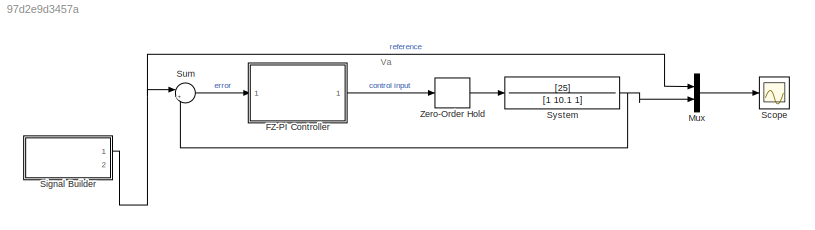
MODEL slx_97d2e9d3457a
KIND model
CONFIG AbsTol = auto
CONFIG FixedStep = auto
CONFIG MaxStep = 0.01
CONFIG MinStep = auto
CONFIG RelTol = 1e-4
CONFIG SampleTimeConstraint = Unconstrained
CONFIG Solver = FixedStepAuto
CONFIG SolverMode = Auto
CONFIG SolverName = FixedStepAuto
CONFIG StartTime = 0.0
CONFIG StopTime = 20
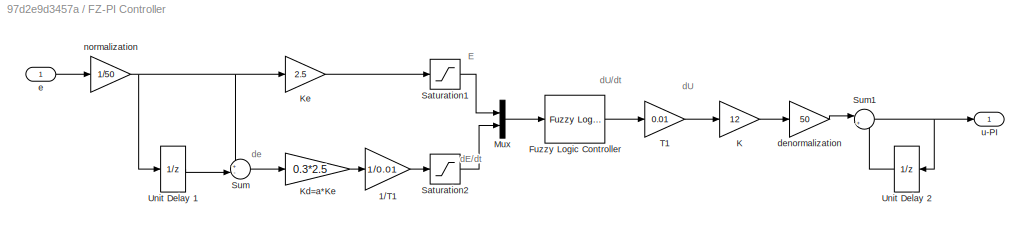
BLOCK [SubSystem] FZ-PI Controller
  Ports = [1, 1]
  RequestExecContextInheritance = off
  Variant = off
BLOCK [Gain] FZ-PI Controller/1//T1
  Gain = 1/0.01
  OutDataTypeStr = Inherit: Inherit via internal rule
  ParamDataTypeStr = Inherit: Inherit via internal rule
  SaturateOnIntegerOverflow = off
BLOCK [Reference] FZ-PI Controller/Fuzzy Logic Controller  REF=fuzblock/Fuzzy Logic   (lib defined in mdl_858b3b3e7478)
Controller
  Ports = [1, 1]
  SourceBlock = fuzblock/Fuzzy Logic \nController
  SourceType = FIS
BLOCK [Gain] FZ-PI Controller/K
  Gain = 12
  OutDataTypeStr = Inherit: Inherit via internal rule
  ParamDataTypeStr = Inherit: Inherit via internal rule
  SaturateOnIntegerOverflow = off
BLOCK [Gain] FZ-PI Controller/Kd=a*Ke
  Gain = 0.3*2.5
  OutDataTypeStr = Inherit: Inherit via internal rule
  ParamDataTypeStr = Inherit: Inherit via internal rule
  SaturateOnIntegerOverflow = off
BLOCK [Mux] FZ-PI Controller/Mux
  DisplayOption = bar
  Inputs = 2
  Ports = [2, 1]
BLOCK [Saturate] FZ-PI Controller/Saturation1
  InputPortMap = u0
  LowerLimit = -1
  Ports = [1, 1]
  UpperLimit = 1
BLOCK [Saturate] FZ-PI Controller/Saturation2
  InputPortMap = u0
  LowerLimit = -1
  Ports = [1, 1]
  UpperLimit = 1
BLOCK [Sum] FZ-PI Controller/Sum
  IconShape = round
  InputSameDT = off
  Inputs = +-|
  OutDataTypeStr = Inherit: Inherit via internal rule
  Ports = [2, 1]
  SaturateOnIntegerOverflow = off
BLOCK [Sum] FZ-PI Controller/Sum1
  IconShape = round
  InputSameDT = off
  Inputs = |++
  OutDataTypeStr = Inherit: Inherit via internal rule
  Ports = [2, 1]
  SaturateOnIntegerOverflow = off
BLOCK [Gain] FZ-PI Controller/T1 
  Gain = 0.01
  OutDataTypeStr = Inherit: Inherit via internal rule
  ParamDataTypeStr = Inherit: Inherit via internal rule
  SaturateOnIntegerOverflow = off
BLOCK [UnitDelay] FZ-PI Controller/Unit Delay 1
  SampleTime = 0.01
BLOCK [UnitDelay] FZ-PI Controller/Unit Delay 2
  SampleTime = 0.01
BLOCK [Gain] FZ-PI Controller/denormalization
  Gain = 50
  OutDataTypeStr = Inherit: Inherit via internal rule
  ParamDataTypeStr = Inherit: Inherit via internal rule
  SaturateOnIntegerOverflow = off
BLOCK [Inport] FZ-PI Controller/e
  IconDisplay = Port number
BLOCK [Gain] FZ-PI Controller/normalization
  Gain = 1/50
  OutDataTypeStr = Inherit: Inherit via internal rule
  ParamDataTypeStr = Inherit: Inherit via internal rule
  SaturateOnIntegerOverflow = off
BLOCK [Outport] FZ-PI Controller/u-PI
  IconDisplay = Port number
BLOCK [Gain] FZ-PI Controller/Κe
  Gain = 2.5
  OutDataTypeStr = Inherit: Inherit via internal rule
  ParamDataTypeStr = Inherit: Inherit via internal rule
  SaturateOnIntegerOverflow = off
BLOCK [Mux] Mux
  DisplayOption = bar
  Inputs = 2
  Ports = [2, 1]
BLOCK [Scope] Scope
  Ports = [1]
  ScopeSpecificationString = Simulink.scopes.TimeScopeBlockCfg('CurrentConfiguration', extmgr.ConfigurationSet(extmgr.Configuration('Core','General UI',true),extmgr.Configuration('Core','Source UI',true),extmgr.Configuration('Sources','WiredSimulink',true),extmgr.Configuration('Visuals','Time Domain',true,'SerializedDisplays',{struct('MinYLimReal','-6.36002','MaxYLimReal','57.24017','YLabelReal','','MinYLimMag','0.00000','Max...<+1474ch>
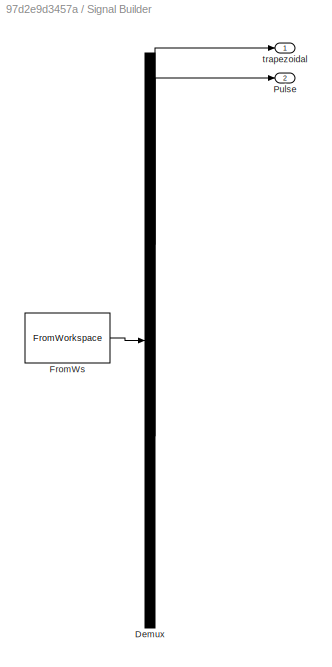
BLOCK [SubSystem] Signal Builder
  ClipboardFcn = sigbuilder_block('clipboard');
  CloseFcn = sigbuilder_block('close');
  ContinueFcn = sigbuilder_block('continue');
  CopyFcn = sigbuilder_block('copy');
  DeleteFcn = sigbuilder_block('delete');
  LoadFcn = sigbuilder_block('load');
  MaskHideContents = on
  ModelCloseFcn = sigbuilder_block('modelClose');
  NameChangeFcn = sigbuilder_block('namechange');
  OpenFcn = sigbuilder_block('open',[136.8 181.2 558 422.4 ]);
  PauseFcn = sigbuilder_block('pause');
  Ports = [0, 2]
  PreSaveFcn = sigbuilder_block('preSave');
  RequestExecContextInheritance = off
  StartFcn = sigbuilder_block('start');
  StopFcn = sigbuilder_block('stop');
  Tag = STV Subsys
  Variant = off
BLOCK [Demux] Signal Builder/Demux
  Outputs = 2
  Ports = [1, 2]
  Tag = STV Demux
BLOCK [FromWorkspace] Signal Builder/FromWs
  SampleTime = 0
  Tag = STV FromWs
  VariableName = tuvar
  ZeroCross = on
BLOCK [Outport] Signal Builder/Pulse
  IconDisplay = Port number
  Port = 2
  Tag = STV Outport
BLOCK [Outport] Signal Builder/trapezoidal
  IconDisplay = Port number
  Tag = STV Outport
BLOCK [Sum] Sum
  IconShape = round
  InputSameDT = off
  Inputs = |+-
  OutDataTypeStr = Inherit: Inherit via internal rule
  Ports = [2, 1]
  SaturateOnIntegerOverflow = off
BLOCK [TransferFcn] System
  Denominator = [1 10.1 1]
  Numerator = [25]
BLOCK [ZeroOrderHold] Zero-Order Hold
  SampleTime = 0.01
ANNOTATION (root): Va
ANNOTATION FZ-PI Controller: E
ANNOTATION FZ-PI Controller: dE/dt
ANNOTATION FZ-PI Controller: dU
ANNOTATION FZ-PI Controller: dU/dt
ANNOTATION FZ-PI Controller: de
LINE FZ-PI Controller/1//T1:1 -> FZ-PI Controller/Saturation2:1
LINE FZ-PI Controller/Fuzzy Logic Controller:1 -> FZ-PI Controller/T1 :1
LINE FZ-PI Controller/K:1 -> FZ-PI Controller/denormalization:1
LINE FZ-PI Controller/Kd=a*Ke:1 -> FZ-PI Controller/1//T1:1
LINE FZ-PI Controller/Mux:1 -> FZ-PI Controller/Fuzzy Logic Controller:1
LINE FZ-PI Controller/Saturation1:1 -> FZ-PI Controller/Mux:1
LINE FZ-PI Controller/Saturation2:1 -> FZ-PI Controller/Mux:2
NET FZ-PI Controller/Sum1:1 -> FZ-PI Controller/Unit Delay 2:1, FZ-PI Controller/u-PI:1
LINE FZ-PI Controller/Sum:1 -> FZ-PI Controller/Kd=a*Ke:1
LINE FZ-PI Controller/T1 :1 -> FZ-PI Controller/K:1
LINE FZ-PI Controller/Unit Delay 1:1 -> FZ-PI Controller/Sum:2
LINE FZ-PI Controller/Unit Delay 2:1 -> FZ-PI Controller/Sum1:2
LINE FZ-PI Controller/denormalization:1 -> FZ-PI Controller/Sum1:1
LINE FZ-PI Controller/e:1 -> FZ-PI Controller/normalization:1
NET FZ-PI Controller/normalization:1 -> FZ-PI Controller/Sum:1, FZ-PI Controller/Unit Delay 1:1, FZ-PI Controller/Κe:1
LINE FZ-PI Controller/Κe:1 -> FZ-PI Controller/Saturation1:1
LINE FZ-PI Controller:1 -> Zero-Order Hold:1
LINE Mux:1 -> Scope:1
NET Signal Builder:1 -> Mux:1, Sum:1
LINE Sum:1 -> FZ-PI Controller:1
NET System:1 -> Mux:2, Sum:2
LINE Zero-Order Hold:1 -> System:1
note: NET lines group one-source signal fan-out (src -> all destinations, sorted); 1:1 wires keep LINE
